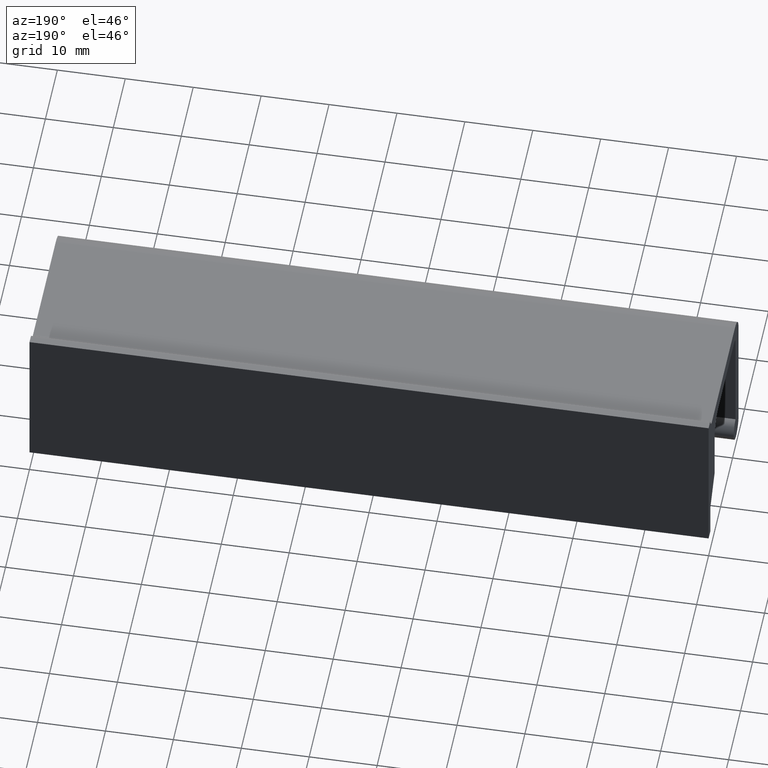
[diagram: clean part render]
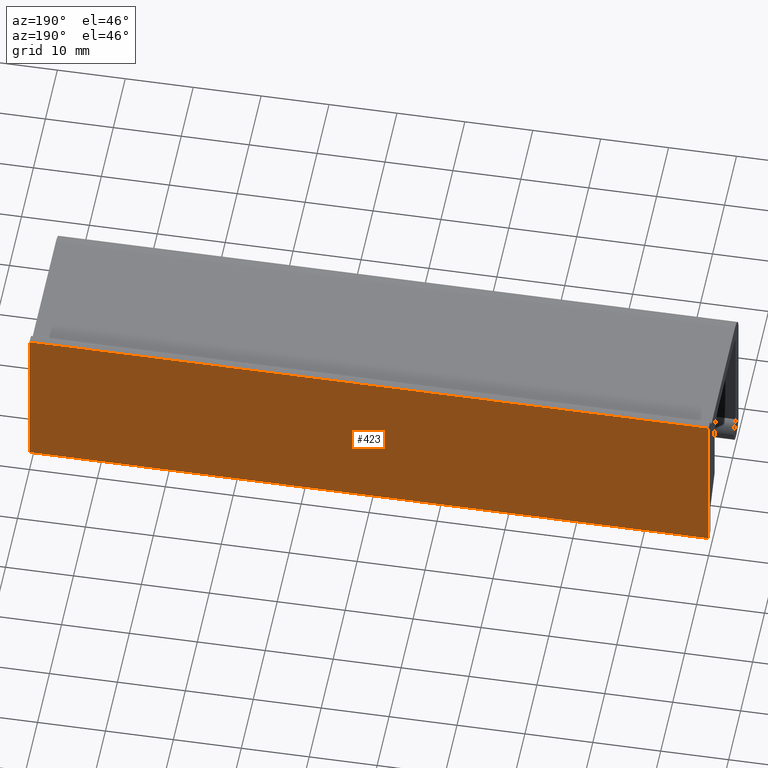
[diagram: same view with one face highlighted and labeled with its STEP entity id]
A machine part, auxiliary view. The second image highlights one B-rep face of the part: STEP entity #423.
In plain terms, the highlighted face is a freeform B-spline surface patch.
Its self-contained STEP definition (entity closure, byte-faithful):
#66=CARTESIAN_POINT('',(0.0,0.0,0.0));
#67=VERTEX_POINT('',#66);
#73=CARTESIAN_POINT('',(0.0,0.0,-23.0));
#74=VERTEX_POINT('',#73);
#75=CARTESIAN_POINT('',(0.0,0.0,-23.0));
#76=CARTESIAN_POINT('',(0.0,0.0,0.0));
#77=QUASI_UNIFORM_CURVE('',1,(#75,#76),.UNSPECIFIED.,.F.,.U.);
#78=EDGE_CURVE('',#74,#67,#77,.T.);
#366=CARTESIAN_POINT('',(100.0,0.0,-23.0));
#367=VERTEX_POINT('',#366);
#373=CARTESIAN_POINT('',(100.0,0.0,0.0));
#374=VERTEX_POINT('',#373);
#375=CARTESIAN_POINT('',(100.0,0.0,-23.0));
#376=CARTESIAN_POINT('',(100.0,0.0,0.0));
#377=QUASI_UNIFORM_CURVE('',1,(#375,#376),.UNSPECIFIED.,.F.,.U.);
#378=EDGE_CURVE('',#367,#374,#377,.T.);
#400=CARTESIAN_POINT('',(100.0,0.0,0.0));
#401=CARTESIAN_POINT('',(0.0,0.0,0.0));
#402=QUASI_UNIFORM_CURVE('',1,(#400,#401),.UNSPECIFIED.,.F.,.U.);
#403=EDGE_CURVE('',#374,#67,#402,.T.);
#408=CARTESIAN_POINT('',(-4.994999806180597,0.0,1.148849955421538));
#409=CARTESIAN_POINT('',(-4.994999806180597,0.0,-24.148850572329611));
#410=CARTESIAN_POINT('',(104.995002488389600,0.0,1.148849955421538));
#411=CARTESIAN_POINT('',(104.995002488389600,0.0,-24.148850572329611));
#412=B_SPLINE_SURFACE_WITH_KNOTS('',1,1,((#408,#410),(#409,#411)),.UNSPECIFIED.,.F.,.F.,.U.,(2,2),(2,2),(0.0,25.297700527751150),(0.0,109.990002294570200),.UNSPECIFIED.);
#413=ORIENTED_EDGE('',*,*,#78,.T.);
#414=ORIENTED_EDGE('',*,*,#403,.F.);
#415=ORIENTED_EDGE('',*,*,#378,.F.);
#416=CARTESIAN_POINT('',(100.0,0.0,-23.0));
#417=CARTESIAN_POINT('',(0.0,0.0,-23.0));
#418=QUASI_UNIFORM_CURVE('',1,(#416,#417),.UNSPECIFIED.,.F.,.U.);
#419=EDGE_CURVE('',#367,#74,#418,.T.);
#420=ORIENTED_EDGE('',*,*,#419,.T.);
#421=EDGE_LOOP('',(#413,#414,#415,#420));
#422=FACE_OUTER_BOUND('',#421,.T.);
#423=ADVANCED_FACE('',(#422),#412,.F.);